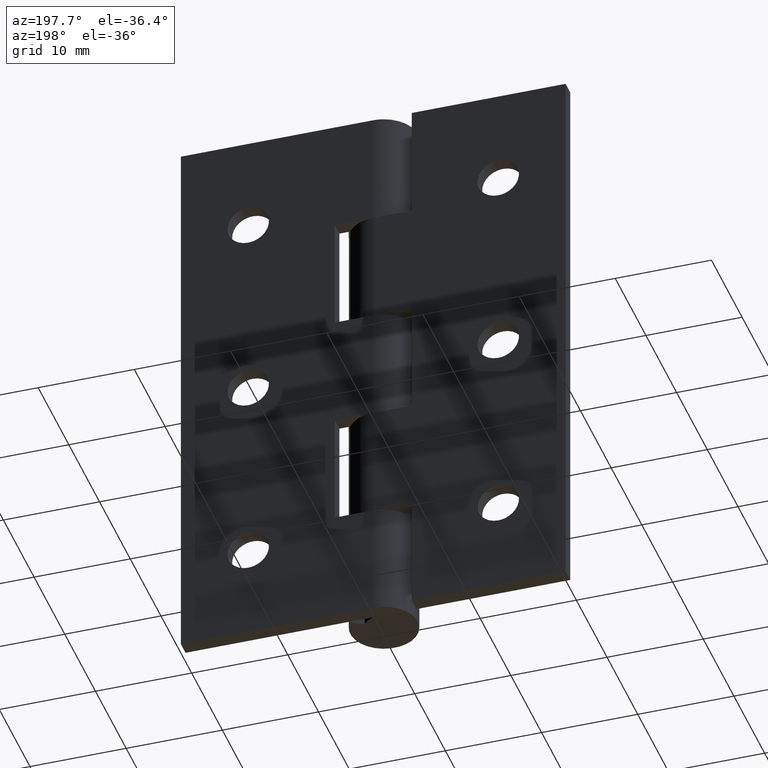
[diagram: clean part render]
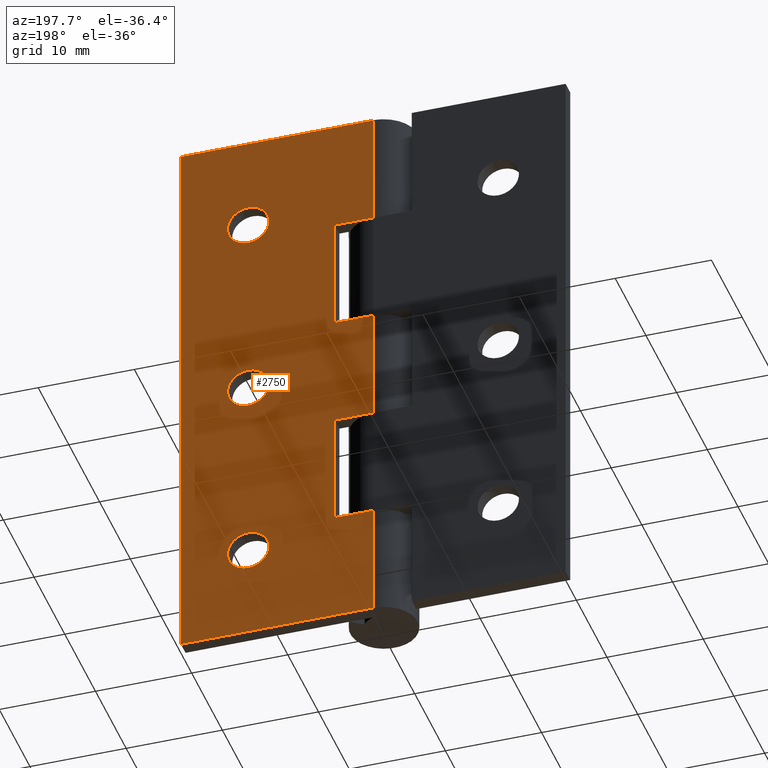
[diagram: same view with one face highlighted and labeled with its STEP entity id]
A machine part, auxiliary view. The second image highlights one B-rep face of the part: STEP entity #2750.
In plain terms, the highlighted face is a freeform B-spline surface patch.
Its self-contained STEP definition (entity closure, byte-faithful):
#1378=CARTESIAN_POINT('',(10.856627732478911,3.499999999999950,50.168687055877513));
#1379=VERTEX_POINT('',#1378);
#1385=CARTESIAN_POINT('',(13.000000000000201,3.499999999999950,52.149999999999999));
#1386=VERTEX_POINT('',#1385);
#1387=CARTESIAN_POINT('',(13.000000000000201,3.499999999999950,52.149999999999999));
#1388=CARTESIAN_POINT('',(11.012560443051596,3.499999999999951,52.149999999999999));
#1389=CARTESIAN_POINT('',(10.856627732478904,3.499999999999950,50.168687055877506));
#1397=(BOUNDED_CURVE()B_SPLINE_CURVE(2,(#1387,#1388,#1389),.UNSPECIFIED.,.F.,.U.)B_SPLINE_CURVE_WITH_KNOTS((3,3),(0.0,0.236331300622746),.UNSPECIFIED.)CURVE()GEOMETRIC_REPRESENTATION_ITEM()RATIONAL_B_SPLINE_CURVE((1.0,0.723120658616937,0.969723356150902))REPRESENTATION_ITEM(''));
#1398=EDGE_CURVE('',#1386,#1379,#1397,.T.);
#1400=CARTESIAN_POINT('',(15.143372267521491,3.499999999999950,49.831312944122480));
#1401=VERTEX_POINT('',#1400);
#1402=CARTESIAN_POINT('',(15.143372267521494,3.499999999999950,49.831312944122487));
#1403=CARTESIAN_POINT('',(15.150000000000198,3.499999999999950,49.915526269870583));
#1404=CARTESIAN_POINT('',(15.150000000000199,3.499999999999950,50.0));
#1405=CARTESIAN_POINT('',(15.150000000000192,3.499999999999950,52.149999999999999));
#1406=CARTESIAN_POINT('',(13.000000000000201,3.499999999999950,52.149999999999999));
#1414=(BOUNDED_CURVE()B_SPLINE_CURVE(2,(#1402,#1403,#1404,#1405,#1406),.UNSPECIFIED.,.F.,.U.)B_SPLINE_CURVE_WITH_KNOTS((3,2,3),(0.736331300622746,0.750000000000000,1.0),.UNSPECIFIED.)CURVE()GEOMETRIC_REPRESENTATION_ITEM()RATIONAL_B_SPLINE_CURVE((0.969723356150902,0.983986122569610,1.0,0.707106781186547,1.0))REPRESENTATION_ITEM(''));
#1415=EDGE_CURVE('',#1401,#1386,#1414,.T.);
#1491=CARTESIAN_POINT('',(13.000000000000201,3.499999999999950,47.850000000000001));
#1492=VERTEX_POINT('',#1491);
#1493=CARTESIAN_POINT('',(13.000000000000201,3.499999999999950,47.850000000000001));
#1494=CARTESIAN_POINT('',(14.987439556948795,3.499999999999951,47.849999999999994));
#1495=CARTESIAN_POINT('',(15.143372267521494,3.499999999999951,49.831312944122480));
#1503=(BOUNDED_CURVE()B_SPLINE_CURVE(2,(#1493,#1494,#1495),.UNSPECIFIED.,.F.,.U.)B_SPLINE_CURVE_WITH_KNOTS((3,3),(0.500000000000000,0.736331300622745),.UNSPECIFIED.)CURVE()GEOMETRIC_REPRESENTATION_ITEM()RATIONAL_B_SPLINE_CURVE((1.0,0.723120658616938,0.969723356150901))REPRESENTATION_ITEM(''));
#1504=EDGE_CURVE('',#1492,#1401,#1503,.T.);
#1506=CARTESIAN_POINT('',(10.856627732478911,3.499999999999950,50.168687055877513));
#1507=CARTESIAN_POINT('',(10.850000000000200,3.499999999999951,50.084473730129432));
#1508=CARTESIAN_POINT('',(10.850000000000200,3.499999999999950,50.0));
#1509=CARTESIAN_POINT('',(10.850000000000200,3.499999999999950,47.849999999999994));
#1510=CARTESIAN_POINT('',(13.000000000000201,3.499999999999950,47.850000000000001));
#1518=(BOUNDED_CURVE()B_SPLINE_CURVE(2,(#1506,#1507,#1508,#1509,#1510),.UNSPECIFIED.,.F.,.U.)B_SPLINE_CURVE_WITH_KNOTS((3,2,3),(0.236331300622746,0.250000000000000,0.500000000000000),.UNSPECIFIED.)CURVE()GEOMETRIC_REPRESENTATION_ITEM()RATIONAL_B_SPLINE_CURVE((0.969723356150902,0.983986122569610,1.0,0.707106781186547,1.0))REPRESENTATION_ITEM(''));
#1519=EDGE_CURVE('',#1379,#1492,#1518,.T.);
#1560=CARTESIAN_POINT('',(10.856627732478911,3.499999999999950,30.168687055877509));
#1561=VERTEX_POINT('',#1560);
#1567=CARTESIAN_POINT('',(13.000000000000201,3.499999999999950,32.149999999999999));
#1568=VERTEX_POINT('',#1567);
#1569=CARTESIAN_POINT('',(13.000000000000201,3.499999999999950,32.149999999999999));
#1570=CARTESIAN_POINT('',(11.012560443051596,3.499999999999951,32.150000000000006));
#1571=CARTESIAN_POINT('',(10.856627732478911,3.499999999999950,30.168687055877513));
#1579=(BOUNDED_CURVE()B_SPLINE_CURVE(2,(#1569,#1570,#1571),.UNSPECIFIED.,.F.,.U.)B_SPLINE_CURVE_WITH_KNOTS((3,3),(0.0,0.236331300622746),.UNSPECIFIED.)CURVE()GEOMETRIC_REPRESENTATION_ITEM()RATIONAL_B_SPLINE_CURVE((1.0,0.723120658616937,0.969723356150902))REPRESENTATION_ITEM(''));
#1580=EDGE_CURVE('',#1568,#1561,#1579,.T.);
#1582=CARTESIAN_POINT('',(15.143372267521491,3.499999999999950,29.831312944122491));
#1583=VERTEX_POINT('',#1582);
#1584=CARTESIAN_POINT('',(15.143372267521494,3.499999999999950,29.831312944122491));
#1585=CARTESIAN_POINT('',(15.150000000000198,3.499999999999950,29.915526269870572));
#1586=CARTESIAN_POINT('',(15.150000000000199,3.499999999999950,30.0));
#1587=CARTESIAN_POINT('',(15.150000000000192,3.499999999999950,32.149999999999999));
#1588=CARTESIAN_POINT('',(13.000000000000201,3.499999999999950,32.149999999999999));
#1596=(BOUNDED_CURVE()B_SPLINE_CURVE(2,(#1584,#1585,#1586,#1587,#1588),.UNSPECIFIED.,.F.,.U.)B_SPLINE_CURVE_WITH_KNOTS((3,2,3),(0.736331300622746,0.750000000000000,1.0),.UNSPECIFIED.)CURVE()GEOMETRIC_REPRESENTATION_ITEM()RATIONAL_B_SPLINE_CURVE((0.969723356150902,0.983986122569610,1.0,0.707106781186547,1.0))REPRESENTATION_ITEM(''));
#1597=EDGE_CURVE('',#1583,#1568,#1596,.T.);
#1673=CARTESIAN_POINT('',(13.000000000000201,3.499999999999950,27.850000000000001));
#1674=VERTEX_POINT('',#1673);
#1675=CARTESIAN_POINT('',(13.000000000000201,3.499999999999950,27.850000000000001));
#1676=CARTESIAN_POINT('',(14.987439556948795,3.499999999999951,27.849999999999998));
#1677=CARTESIAN_POINT('',(15.143372267521494,3.499999999999951,29.831312944122487));
#1685=(BOUNDED_CURVE()B_SPLINE_CURVE(2,(#1675,#1676,#1677),.UNSPECIFIED.,.F.,.U.)B_SPLINE_CURVE_WITH_KNOTS((3,3),(0.500000000000000,0.736331300622745),.UNSPECIFIED.)CURVE()GEOMETRIC_REPRESENTATION_ITEM()RATIONAL_B_SPLINE_CURVE((1.0,0.723120658616938,0.969723356150901))REPRESENTATION_ITEM(''));
#1686=EDGE_CURVE('',#1674,#1583,#1685,.T.);
#1688=CARTESIAN_POINT('',(10.856627732478911,3.499999999999950,30.168687055877513));
#1689=CARTESIAN_POINT('',(10.850000000000199,3.499999999999950,30.084473730129424));
#1690=CARTESIAN_POINT('',(10.850000000000200,3.499999999999950,30.0));
#1691=CARTESIAN_POINT('',(10.850000000000200,3.499999999999950,27.850000000000005));
#1692=CARTESIAN_POINT('',(13.000000000000201,3.499999999999950,27.850000000000001));
#1700=(BOUNDED_CURVE()B_SPLINE_CURVE(2,(#1688,#1689,#1690,#1691,#1692),.UNSPECIFIED.,.F.,.U.)B_SPLINE_CURVE_WITH_KNOTS((3,2,3),(0.236331300622746,0.250000000000000,0.500000000000000),.UNSPECIFIED.)CURVE()GEOMETRIC_REPRESENTATION_ITEM()RATIONAL_B_SPLINE_CURVE((0.969723356150902,0.983986122569610,1.0,0.707106781186547,1.0))REPRESENTATION_ITEM(''));
#1701=EDGE_CURVE('',#1561,#1674,#1700,.T.);
#1742=CARTESIAN_POINT('',(10.856627732478911,3.499999999999950,10.168687055877511));
#1743=VERTEX_POINT('',#1742);
#1749=CARTESIAN_POINT('',(13.000000000000201,3.499999999999950,12.150000000000000));
#1750=VERTEX_POINT('',#1749);
#1751=CARTESIAN_POINT('',(13.000000000000201,3.499999999999950,12.150000000000000));
#1752=CARTESIAN_POINT('',(11.012560443051596,3.499999999999951,12.149999999999999));
#1753=CARTESIAN_POINT('',(10.856627732478911,3.499999999999950,10.168687055877514));
#1761=(BOUNDED_CURVE()B_SPLINE_CURVE(2,(#1751,#1752,#1753),.UNSPECIFIED.,.F.,.U.)B_SPLINE_CURVE_WITH_KNOTS((3,3),(0.0,0.236331300622746),.UNSPECIFIED.)CURVE()GEOMETRIC_REPRESENTATION_ITEM()RATIONAL_B_SPLINE_CURVE((1.0,0.723120658616937,0.969723356150902))REPRESENTATION_ITEM(''));
#1762=EDGE_CURVE('',#1750,#1743,#1761,.T.);
#1764=CARTESIAN_POINT('',(15.143372267521491,3.499999999999950,9.831312944122484));
#1765=VERTEX_POINT('',#1764);
#1766=CARTESIAN_POINT('',(15.143372267521494,3.499999999999950,9.831312944122484));
#1767=CARTESIAN_POINT('',(15.150000000000198,3.499999999999950,9.915526269870570));
#1768=CARTESIAN_POINT('',(15.150000000000199,3.499999999999950,10.0));
#1769=CARTESIAN_POINT('',(15.150000000000192,3.499999999999950,12.150000000000000));
#1770=CARTESIAN_POINT('',(13.000000000000201,3.499999999999950,12.150000000000000));
#1778=(BOUNDED_CURVE()B_SPLINE_CURVE(2,(#1766,#1767,#1768,#1769,#1770),.UNSPECIFIED.,.F.,.U.)B_SPLINE_CURVE_WITH_KNOTS((3,2,3),(0.736331300622746,0.750000000000000,1.0),.UNSPECIFIED.)CURVE()GEOMETRIC_REPRESENTATION_ITEM()RATIONAL_B_SPLINE_CURVE((0.969723356150902,0.983986122569610,1.0,0.707106781186547,1.0))REPRESENTATION_ITEM(''));
#1779=EDGE_CURVE('',#1765,#1750,#1778,.T.);
#1855=CARTESIAN_POINT('',(13.000000000000201,3.499999999999950,7.850000000000000));
#1856=VERTEX_POINT('',#1855);
#1857=CARTESIAN_POINT('',(13.000000000000201,3.499999999999950,7.850000000000000));
#1858=CARTESIAN_POINT('',(14.987439556948795,3.499999999999951,7.849999999999999));
#1859=CARTESIAN_POINT('',(15.143372267521494,3.499999999999951,9.831312944122484));
#1867=(BOUNDED_CURVE()B_SPLINE_CURVE(2,(#1857,#1858,#1859),.UNSPECIFIED.,.F.,.U.)B_SPLINE_CURVE_WITH_KNOTS((3,3),(0.500000000000000,0.736331300622745),.UNSPECIFIED.)CURVE()GEOMETRIC_REPRESENTATION_ITEM()RATIONAL_B_SPLINE_CURVE((1.0,0.723120658616938,0.969723356150901))REPRESENTATION_ITEM(''));
#1868=EDGE_CURVE('',#1856,#1765,#1867,.T.);
#1870=CARTESIAN_POINT('',(10.856627732478911,3.499999999999950,10.168687055877514));
#1871=CARTESIAN_POINT('',(10.850000000000199,3.499999999999950,10.084473730129430));
#1872=CARTESIAN_POINT('',(10.850000000000200,3.499999999999950,10.0));
#1873=CARTESIAN_POINT('',(10.850000000000200,3.499999999999950,7.849999999999999));
#1874=CARTESIAN_POINT('',(13.000000000000201,3.499999999999950,7.850000000000000));
#1882=(BOUNDED_CURVE()B_SPLINE_CURVE(2,(#1870,#1871,#1872,#1873,#1874),.UNSPECIFIED.,.F.,.U.)B_SPLINE_CURVE_WITH_KNOTS((3,2,3),(0.236331300622746,0.250000000000000,0.500000000000000),.UNSPECIFIED.)CURVE()GEOMETRIC_REPRESENTATION_ITEM()RATIONAL_B_SPLINE_CURVE((0.969723356150902,0.983986122569610,1.0,0.707106781186547,1.0))REPRESENTATION_ITEM(''));
#1883=EDGE_CURVE('',#1743,#1856,#1882,.T.);
#1896=CARTESIAN_POINT('',(4.0,3.499999999999950,24.0));
#1897=VERTEX_POINT('',#1896);
#1903=CARTESIAN_POINT('',(4.0,3.499999999999950,12.0));
#1904=VERTEX_POINT('',#1903);
#1905=CARTESIAN_POINT('',(4.0,3.499999999999950,24.0));
#1906=CARTESIAN_POINT('',(4.0,3.499999999999950,12.0));
#1907=QUASI_UNIFORM_CURVE('',1,(#1905,#1906),.UNSPECIFIED.,.F.,.U.);
#1908=EDGE_CURVE('',#1897,#1904,#1907,.T.);
#1960=CARTESIAN_POINT('',(0.0,3.499999999999950,24.0));
#1961=VERTEX_POINT('',#1960);
#1981=CARTESIAN_POINT('',(0.0,3.499999999999950,24.0));
#1982=CARTESIAN_POINT('',(4.0,3.499999999999950,24.0));
#1983=QUASI_UNIFORM_CURVE('',1,(#1981,#1982),.UNSPECIFIED.,.F.,.U.);
#1984=EDGE_CURVE('',#1961,#1897,#1983,.T.);
#2001=CARTESIAN_POINT('',(0.0,3.499999999999950,12.0));
#2002=VERTEX_POINT('',#2001);
#2003=CARTESIAN_POINT('',(4.0,3.499999999999950,12.0));
#2004=CARTESIAN_POINT('',(0.0,3.499999999999950,12.0));
#2005=QUASI_UNIFORM_CURVE('',1,(#2003,#2004),.UNSPECIFIED.,.F.,.U.);
#2006=EDGE_CURVE('',#1904,#2002,#2005,.T.);
#2072=CARTESIAN_POINT('',(4.0,3.499999999999950,48.0));
#2073=VERTEX_POINT('',#2072);
#2079=CARTESIAN_POINT('',(4.0,3.499999999999950,36.0));
#2080=VERTEX_POINT('',#2079);
#2081=CARTESIAN_POINT('',(4.0,3.499999999999950,36.0));
#2082=CARTESIAN_POINT('',(4.0,3.499999999999950,48.0));
#2083=QUASI_UNIFORM_CURVE('',1,(#2081,#2082),.UNSPECIFIED.,.F.,.U.);
#2084=EDGE_CURVE('',#2080,#2073,#2083,.T.);
#2107=CARTESIAN_POINT('',(0.0,3.499999999999950,36.0));
#2108=VERTEX_POINT('',#2107);
#2109=CARTESIAN_POINT('',(0.0,3.499999999999950,36.0));
#2110=CARTESIAN_POINT('',(4.0,3.499999999999950,36.0));
#2111=QUASI_UNIFORM_CURVE('',1,(#2109,#2110),.UNSPECIFIED.,.F.,.U.);
#2112=EDGE_CURVE('',#2108,#2080,#2111,.T.);
#2206=CARTESIAN_POINT('',(0.0,3.499999999999950,48.0));
#2207=VERTEX_POINT('',#2206);
#2227=CARTESIAN_POINT('',(4.0,3.499999999999950,48.0));
#2228=CARTESIAN_POINT('',(0.0,3.499999999999950,48.0));
#2229=QUASI_UNIFORM_CURVE('',1,(#2227,#2228),.UNSPECIFIED.,.F.,.U.);
#2230=EDGE_CURVE('',#2073,#2207,#2229,.T.);
#2246=CARTESIAN_POINT('',(-6.429183E-016,3.500000000000000,0.0));
#2247=VERTEX_POINT('',#2246);
#2248=CARTESIAN_POINT('',(20.0,3.500000000000000,0.0));
#2249=VERTEX_POINT('',#2248);
#2250=CARTESIAN_POINT('',(-6.429183E-016,3.500000000000000,0.0));
#2251=CARTESIAN_POINT('',(20.0,3.500000000000000,0.0));
#2252=QUASI_UNIFORM_CURVE('',1,(#2250,#2251),.UNSPECIFIED.,.F.,.U.);
#2253=EDGE_CURVE('',#2247,#2249,#2252,.T.);
#2324=CARTESIAN_POINT('',(-6.429183E-016,3.500000000000000,60.0));
#2325=VERTEX_POINT('',#2324);
#2326=CARTESIAN_POINT('',(20.0,3.500000000000000,60.0));
#2327=VERTEX_POINT('',#2326);
#2328=CARTESIAN_POINT('',(-6.429183E-016,3.500000000000000,60.0));
#2329=CARTESIAN_POINT('',(20.0,3.500000000000000,60.0));
#2330=QUASI_UNIFORM_CURVE('',1,(#2328,#2329),.UNSPECIFIED.,.F.,.U.);
#2331=EDGE_CURVE('',#2325,#2327,#2330,.T.);
#2403=CARTESIAN_POINT('',(20.0,3.500000000000000,60.0));
#2404=CARTESIAN_POINT('',(20.0,3.500000000000000,0.0));
#2405=QUASI_UNIFORM_CURVE('',1,(#2403,#2404),.UNSPECIFIED.,.F.,.U.);
#2406=EDGE_CURVE('',#2327,#2249,#2405,.T.);
#2446=CARTESIAN_POINT('',(-6.429183E-016,3.500000000000000,60.0));
#2447=CARTESIAN_POINT('',(0.0,3.499999999999950,48.0));
#2448=QUASI_UNIFORM_CURVE('',1,(#2446,#2447),.UNSPECIFIED.,.F.,.U.);
#2449=EDGE_CURVE('',#2325,#2207,#2448,.T.);
#2532=CARTESIAN_POINT('',(0.0,3.499999999999950,36.0));
#2533=CARTESIAN_POINT('',(0.0,3.499999999999950,24.0));
#2534=QUASI_UNIFORM_CURVE('',1,(#2532,#2533),.UNSPECIFIED.,.F.,.U.);
#2535=EDGE_CURVE('',#2108,#1961,#2534,.T.);
#2563=CARTESIAN_POINT('',(0.0,3.499999999999950,12.0));
#2564=CARTESIAN_POINT('',(-6.429183E-016,3.500000000000000,0.0));
#2565=QUASI_UNIFORM_CURVE('',1,(#2563,#2564),.UNSPECIFIED.,.F.,.U.);
#2566=EDGE_CURVE('',#2002,#2247,#2565,.T.);
#2713=CARTESIAN_POINT('',(-0.998999961236118,3.500000000000000,-2.996999883708359));
#2714=CARTESIAN_POINT('',(-0.998999961236118,3.500000000000000,62.997001493033771));
#2715=CARTESIAN_POINT('',(20.999000497677919,3.500000000000000,-2.996999883708359));
#2716=CARTESIAN_POINT('',(20.999000497677919,3.500000000000000,62.997001493033771));
#2717=B_SPLINE_SURFACE_WITH_KNOTS('',1,1,((#2713,#2715),(#2714,#2716)),.UNSPECIFIED.,.F.,.F.,.U.,(2,2),(2,2),(0.0,65.994001376742133),(0.0,21.998000458914039),.UNSPECIFIED.);
#2718=ORIENTED_EDGE('',*,*,#2566,.F.);
#2719=ORIENTED_EDGE('',*,*,#2006,.F.);
#2720=ORIENTED_EDGE('',*,*,#1908,.F.);
#2721=ORIENTED_EDGE('',*,*,#1984,.F.);
#2722=ORIENTED_EDGE('',*,*,#2535,.F.);
#2723=ORIENTED_EDGE('',*,*,#2112,.T.);
#2724=ORIENTED_EDGE('',*,*,#2084,.T.);
#2725=ORIENTED_EDGE('',*,*,#2230,.T.);
#2726=ORIENTED_EDGE('',*,*,#2449,.F.);
#2727=ORIENTED_EDGE('',*,*,#2331,.T.);
#2728=ORIENTED_EDGE('',*,*,#2406,.T.);
#2729=ORIENTED_EDGE('',*,*,#2253,.F.);
#2730=EDGE_LOOP('',(#2718,#2719,#2720,#2721,#2722,#2723,#2724,#2725,#2726,#2727,#2728,#2729));
#2731=FACE_OUTER_BOUND('',#2730,.T.);
#2732=ORIENTED_EDGE('',*,*,#1868,.T.);
#2733=ORIENTED_EDGE('',*,*,#1779,.T.);
#2734=ORIENTED_EDGE('',*,*,#1762,.T.);
#2735=ORIENTED_EDGE('',*,*,#1883,.T.);
#2736=EDGE_LOOP('',(#2732,#2733,#2734,#2735));
#2737=FACE_BOUND('',#2736,.T.);
#2738=ORIENTED_EDGE('',*,*,#1686,.T.);
#2739=ORIENTED_EDGE('',*,*,#1597,.T.);
#2740=ORIENTED_EDGE('',*,*,#1580,.T.);
#2741=ORIENTED_EDGE('',*,*,#1701,.T.);
#2742=EDGE_LOOP('',(#2738,#2739,#2740,#2741));
#2743=FACE_BOUND('',#2742,.T.);
#2744=ORIENTED_EDGE('',*,*,#1504,.T.);
#2745=ORIENTED_EDGE('',*,*,#1415,.T.);
#2746=ORIENTED_EDGE('',*,*,#1398,.T.);
#2747=ORIENTED_EDGE('',*,*,#1519,.T.);
#2748=EDGE_LOOP('',(#2744,#2745,#2746,#2747));
#2749=FACE_BOUND('',#2748,.T.);
#2750=ADVANCED_FACE('',(#2731,#2737,#2743,#2749),#2717,.T.);